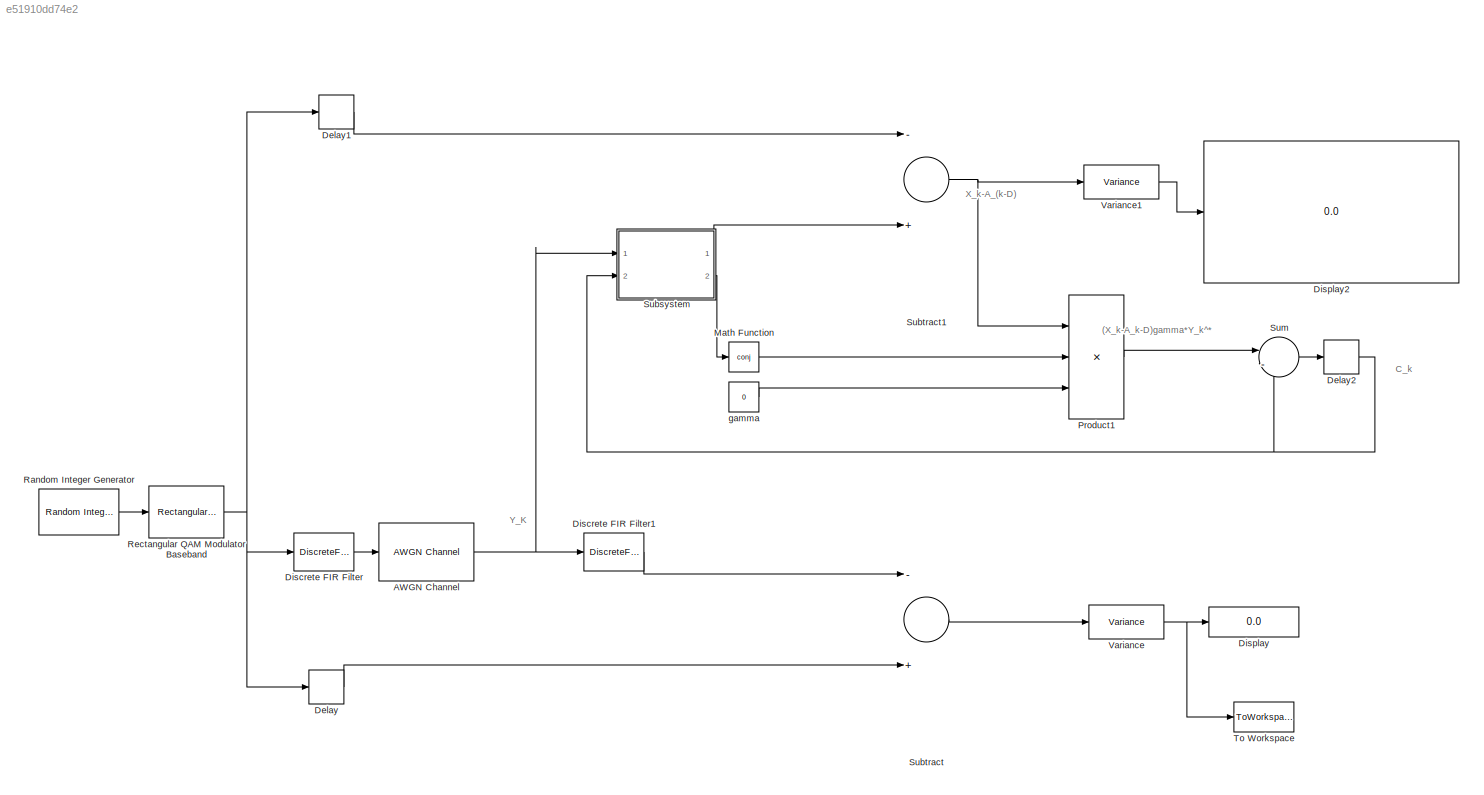
MODEL slx_e51910dd74e2
KIND model
CONFIG AbsTol = auto
CONFIG EnableMultiTasking = off
CONFIG FixedStep = auto
CONFIG MaxStep = auto
CONFIG MinStep = auto
CONFIG RelTol = 1e-3
CONFIG SampleTimeConstraint = Unconstrained
CONFIG Solver = VariableStepDiscrete
CONFIG SolverName = VariableStepDiscrete
CONFIG StartTime = 0.0
CONFIG StopTime = inf
BLOCK [Reference] AWGN Channel  REF=commchan3/AWGN
Channel
  Ports = [1, 1]
  SourceBlock = commchan3/AWGN\nChannel
  SourceType = AWGN Channel
  UserDataPersistent = on
BLOCK [Delay] Delay
  DelayLength = 1
  InitialCondition = 0
  InputPortMap = u0
  Ports = [1, 1]
BLOCK [Delay] Delay1
  DelayLength = D
  InitialCondition = 0
  InputPortMap = u0
  Ports = [1, 1]
BLOCK [Delay] Delay2
  DelayLength = 1
  InitialCondition = coptD
  InputPortMap = u0
  Ports = [1, 1]
BLOCK [DiscreteFir] Discrete FIR Filter
  Coefficients = gk
  InputPortMap = u0
  InputProcessing = Columns as channels (frame based)
  OutputPortMap = o0
  Ports = [1, 1]
BLOCK [DiscreteFir] Discrete FIR Filter1
  Coefficients = coptD.'
  InputPortMap = u0
  InputProcessing = Columns as channels (frame based)
  OutputPortMap = o0
  Ports = [1, 1]
BLOCK [Display] Display
  Decimation = 1
  Ports = [1]
BLOCK [Display] Display2
  Decimation = 1
  Ports = [1]
BLOCK [Math] Math Function
  Operator = conj
  Ports = [1, 1]
BLOCK [Product] Product1
  InputSameDT = off
  Inputs = 3
  OutDataTypeStr = Inherit: Inherit via internal rule
  Ports = [3, 1]
  RndMeth = Floor
  SaturateOnIntegerOverflow = off
BLOCK [Reference] Random Integer Generator  REF=commrandsrc3/Random Integer
Generator
  Ports = [0, 1]
  SourceBlock = commrandsrc3/Random Integer\nGenerator
  SourceType = Random Integer Generator
BLOCK [Reference] Rectangular QAM Modulator Baseband  REF=commdigbbndam3/Rectangular QAM
Modulator
Baseband
  Ports = [1, 1]
  SourceBlock = commdigbbndam3/Rectangular QAM\nModulator\nBaseband
  SourceType = Rectangular QAM Modulator Baseband
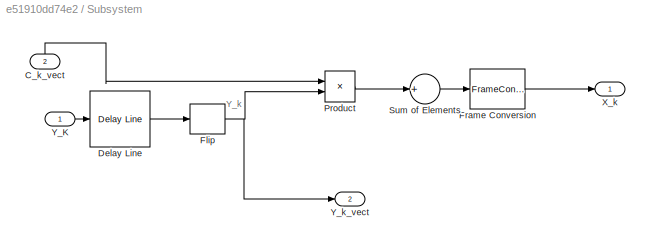
BLOCK [SubSystem] Subsystem
  Ports = [2, 2]
  RequestExecContextInheritance = off
  Variant = off
BLOCK [Inport] Subsystem/C_k_vect 
  IconDisplay = Port number
  Port = 2
BLOCK [Reference] Subsystem/Delay Line  REF=dspbuff3/Delay Line
  Ports = [1, 1]
  SourceBlock = dspbuff3/Delay Line
  SourceType = Delay Line
  UserDataPersistent = on
BLOCK [DSPFlip] Subsystem/Flip
BLOCK [FrameConversion] Subsystem/Frame Conversion
  InheritSamplingMode = off
  OutFrame = Sample-based
  Ports = [1, 1]
BLOCK [Product] Subsystem/Product
  InputSameDT = off
  OutDataTypeStr = Inherit: Inherit via internal rule
  Ports = [2, 1]
  RndMeth = Floor
  SaturateOnIntegerOverflow = off
BLOCK [Sum] Subsystem/Sum of Elements
  InputSameDT = off
  Inputs = +
  OutDataTypeStr = Inherit: Inherit via internal rule
  Ports = [1, 1]
  SaturateOnIntegerOverflow = off
BLOCK [Outport] Subsystem/X_k
  IconDisplay = Port number
BLOCK [Inport] Subsystem/Y_K 
  IconDisplay = Port number
BLOCK [Outport] Subsystem/Y_k_vect
  IconDisplay = Port number
  Port = 2
BLOCK [Sum] Subtract
  InputSameDT = off
  Inputs = -+
  OutDataTypeStr = Inherit: Inherit via internal rule
  Ports = [2, 1]
  SaturateOnIntegerOverflow = off
BLOCK [Sum] Subtract1
  InputSameDT = off
  Inputs = -+
  OutDataTypeStr = Inherit: Inherit via internal rule
  Ports = [2, 1]
  SaturateOnIntegerOverflow = off
BLOCK [Sum] Sum
  IconShape = round
  InputSameDT = off
  Inputs = |-+
  OutDataTypeStr = Inherit: Inherit via internal rule
  Ports = [2, 1]
  SaturateOnIntegerOverflow = off
BLOCK [ToWorkspace] To Workspace
  FixptAsFi = on
  MaxDataPoints = 1
  Ports = [1]
  SampleTime = -1
  Save2DSignal = 3-D array (concatenate along third dimension)
  VariableName = measureMESED
BLOCK [Reference] Variance  REF=dspstat3/Variance
  Ports = [1, 1]
  SourceBlock = dspstat3/Variance
  SourceType = Variance
  UserDataPersistent = on
BLOCK [Reference] Variance1  REF=dspstat3/Variance
  Ports = [1, 1]
  SourceBlock = dspstat3/Variance
  SourceType = Variance
  UserDataPersistent = on
BLOCK [Constant] gamma 
  SampleTime = -1
  Value = 0
ANNOTATION (root): (X_k-A_k-D)gamma*Y_k^*
ANNOTATION (root): C_k
ANNOTATION (root): X_k-A_(k-D)
ANNOTATION (root): Y_K
ANNOTATION Subsystem: Y_k
NET AWGN Channel:1 -> Discrete FIR Filter1:1, Subsystem:1
LINE Delay1:1 -> Subtract1:1
NET Delay2:1 -> Subsystem:2, Sum:2
LINE Delay:1 -> Subtract:2
LINE Discrete FIR Filter1:1 -> Subtract:1
LINE Discrete FIR Filter:1 -> AWGN Channel:1
LINE Math Function:1 -> Product1:2
LINE Product1:1 -> Sum:1
LINE Random Integer Generator:1 -> Rectangular QAM Modulator Baseband:1
NET Rectangular QAM Modulator Baseband:1 -> Delay1:1, Delay:1, Discrete FIR Filter:1
LINE Subsystem/C_k_vect :1 -> Subsystem/Product:1
LINE Subsystem/Delay Line:1 -> Subsystem/Flip:1
NET Subsystem/Flip:1 -> Subsystem/Product:2, Subsystem/Y_k_vect:1
LINE Subsystem/Frame Conversion:1 -> Subsystem/X_k:1
LINE Subsystem/Product:1 -> Subsystem/Sum of Elements:1
LINE Subsystem/Sum of Elements:1 -> Subsystem/Frame Conversion:1
LINE Subsystem/Y_K :1 -> Subsystem/Delay Line:1
LINE Subsystem:1 -> Subtract1:2
LINE Subsystem:2 -> Math Function:1
NET Subtract1:1 -> Product1:1, Variance1:1
LINE Subtract:1 -> Variance:1
LINE Sum:1 -> Delay2:1
LINE Variance1:1 -> Display2:1
NET Variance:1 -> Display:1, To Workspace:1
LINE gamma :1 -> Product1:3
note: NET lines group one-source signal fan-out (src -> all destinations, sorted); 1:1 wires keep LINE
